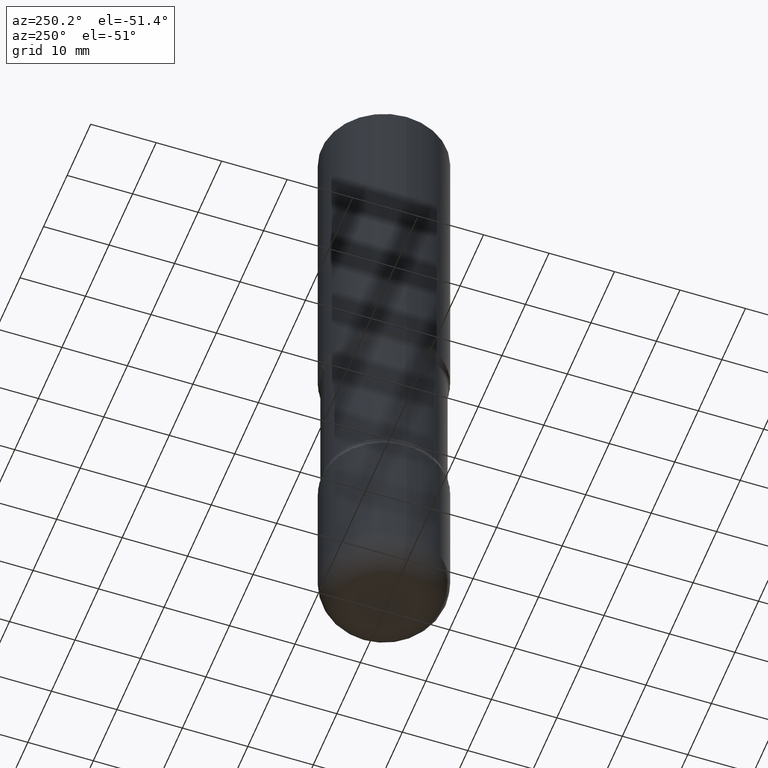
[diagram: clean part render]
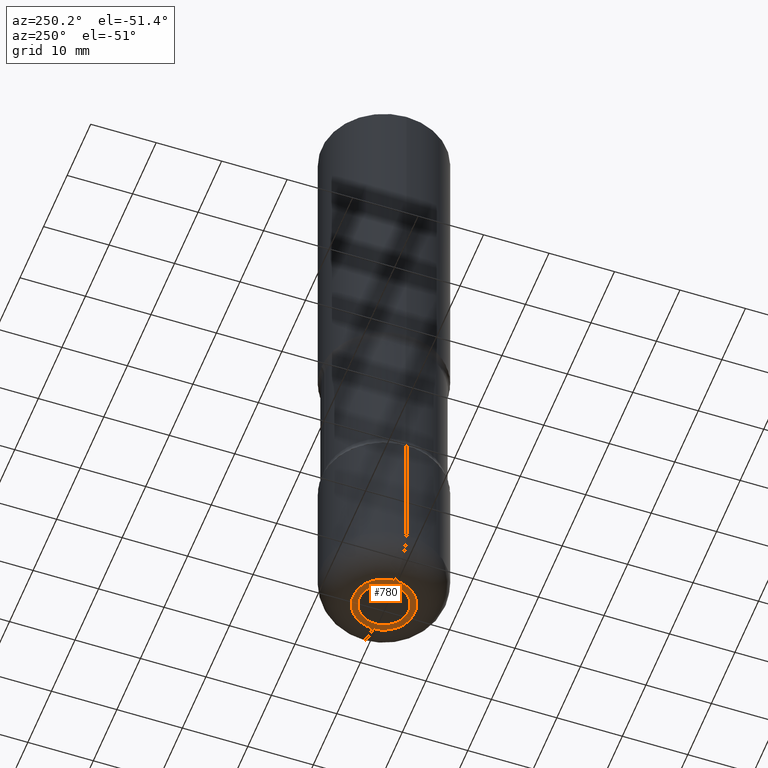
[diagram: same view with one face highlighted and labeled with its STEP entity id]
A machine part, auxiliary view. The second image highlights one B-rep face of the part: STEP entity #780.
In plain terms, the highlighted planar face has unit normal (-0, 0, 1).
Its self-contained STEP definition (entity closure, byte-faithful):
#35 = AXIS2_PLACEMENT_3D ( 'NONE', #495, #57, #434 ) ;
#37 = ORIENTED_EDGE ( 'NONE', *, *, #631, .T. ) ;
#48 = VERTEX_POINT ( 'NONE', #118 ) ;
#50 = DIRECTION ( 'NONE',  ( -2.445468806185136597E-29, 3.491481338843145583E-15, 1.000000000000000000 ) ) ;
#57 = DIRECTION ( 'NONE',  ( -2.445468806185136597E-29, 3.491481338843145583E-15, 1.000000000000000000 ) ) ;
#91 = DIRECTION ( 'NONE',  ( 1.000000000000000000, -6.982962677686271444E-15, 0.000000000000000000 ) ) ;
#95 = CIRCLE ( 'NONE', #35, 0.1850000000000001088 ) ;
#101 = VERTEX_POINT ( 'NONE', #540 ) ;
#118 = CARTESIAN_POINT ( 'NONE',  ( -0.1850000000000001088, -1.164471496805420174E-14, -4.000000000000000888 ) ) ;
#168 = CARTESIAN_POINT ( 'NONE',  ( 0.1850000000000001088, -1.525777345074454388E-14, -4.000000000000000888 ) ) ;
#170 = CIRCLE ( 'NONE', #611, 0.1850000000000001088 ) ;
#201 = ORIENTED_EDGE ( 'NONE', *, *, #714, .F. ) ;
#233 = DIRECTION ( 'NONE',  ( 1.000000000000000000, -6.982962677686265922E-15, 0.000000000000000000 ) ) ;
#245 = EDGE_LOOP ( 'NONE', ( #657, #37 ) ) ;
#273 = AXIS2_PLACEMENT_3D ( 'NONE', #553, #609, #450 ) ;
#275 = ORIENTED_EDGE ( 'NONE', *, *, #805, .F. ) ;
#276 = CARTESIAN_POINT ( 'NONE',  ( -0.1474999999999999645, -1.293593836041385578E-14, -3.999999999999999556 ) ) ;
#303 = DIRECTION ( 'NONE',  ( 1.000000000000000000, -6.982962677686265922E-15, 0.000000000000000000 ) ) ;
#353 = CARTESIAN_POINT ( 'NONE',  ( 9.781875224740545266E-29, -1.396592535537258075E-14, -3.999999999999999556 ) ) ;
#361 = AXIS2_PLACEMENT_3D ( 'NONE', #798, #50, #303 ) ;
#371 = CIRCLE ( 'NONE', #725, 0.1475000000000000755 ) ;
#380 = CARTESIAN_POINT ( 'NONE',  ( 9.781875224740547508E-29, -1.396592535537258391E-14, -4.000000000000000888 ) ) ;
#391 = EDGE_LOOP ( 'NONE', ( #275, #201 ) ) ;
#426 = CIRCLE ( 'NONE', #361, 0.1475000000000000755 ) ;
#434 = DIRECTION ( 'NONE',  ( 1.000000000000000000, -6.982962677686271444E-15, 0.000000000000000000 ) ) ;
#446 = FACE_OUTER_BOUND ( 'NONE', #391, .T. ) ;
#450 = DIRECTION ( 'NONE',  ( 1.000000000000000000, -6.982962677686265922E-15, 4.876176775795935793E-29 ) ) ;
#495 = CARTESIAN_POINT ( 'NONE',  ( 9.781875224740547508E-29, -1.396592535537258391E-14, -4.000000000000000888 ) ) ;
#532 = VERTEX_POINT ( 'NONE', #276 ) ;
#540 = CARTESIAN_POINT ( 'NONE',  ( 0.1474999999999999645, -1.497784881004388002E-14, -3.999999999999999556 ) ) ;
#553 = CARTESIAN_POINT ( 'NONE',  ( -7.161073312030320646E-28, -1.305247730850476631E-13, -4.000000000000000000 ) ) ;
#609 = DIRECTION ( 'NONE',  ( -2.438088387897960049E-29, 3.491481338843145188E-15, 1.000000000000000000 ) ) ;
#611 = AXIS2_PLACEMENT_3D ( 'NONE', #380, #637, #91 ) ;
#631 = EDGE_CURVE ( 'NONE', #101, #532, #371, .T. ) ;
#635 = EDGE_CURVE ( 'NONE', #532, #101, #426, .T. ) ;
#637 = DIRECTION ( 'NONE',  ( -2.445468806185136597E-29, 3.491481338843145583E-15, 1.000000000000000000 ) ) ;
#657 = ORIENTED_EDGE ( 'NONE', *, *, #635, .T. ) ;
#690 = VERTEX_POINT ( 'NONE', #168 ) ;
#700 = FACE_BOUND ( 'NONE', #245, .T. ) ;
#714 = EDGE_CURVE ( 'NONE', #48, #690, #95, .T. ) ;
#725 = AXIS2_PLACEMENT_3D ( 'NONE', #353, #743, #233 ) ;
#743 = DIRECTION ( 'NONE',  ( -2.445468806185136597E-29, 3.491481338843145583E-15, 1.000000000000000000 ) ) ;
#749 = PLANE ( 'NONE',  #273 ) ;
#780 = ADVANCED_FACE ( 'NONE', ( #446, #700 ), #749, .F. ) ;
#798 = CARTESIAN_POINT ( 'NONE',  ( 9.781875224740545266E-29, -1.396592535537258075E-14, -3.999999999999999556 ) ) ;
#805 = EDGE_CURVE ( 'NONE', #690, #48, #170, .T. ) ;